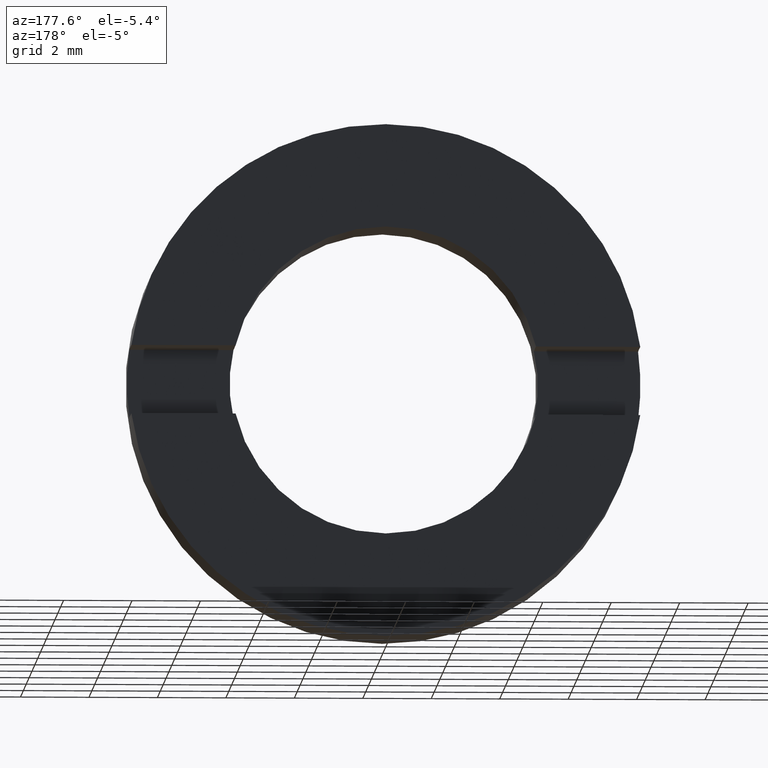
[diagram: clean part render]
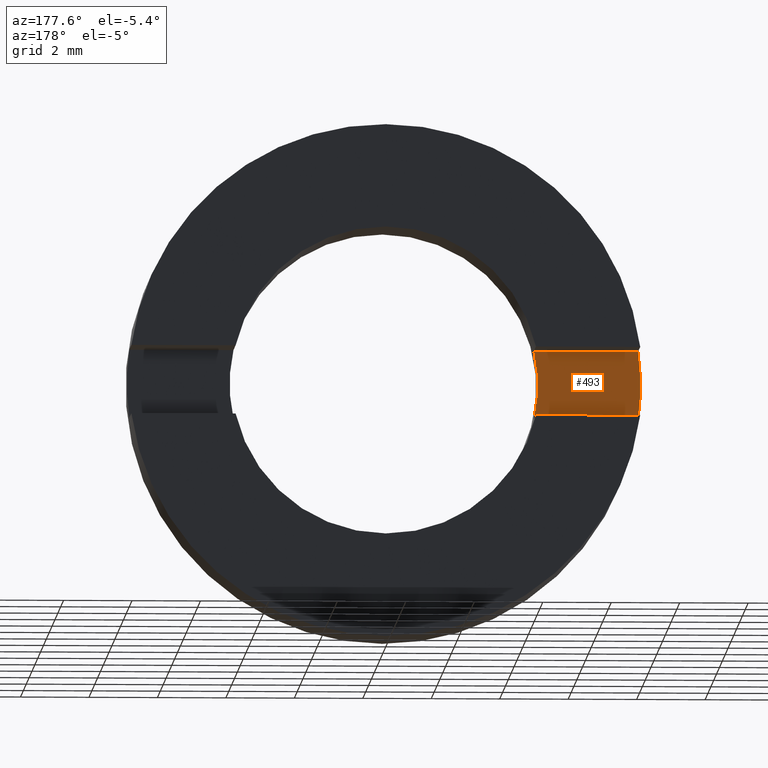
[diagram: same view with one face highlighted and labeled with its STEP entity id]
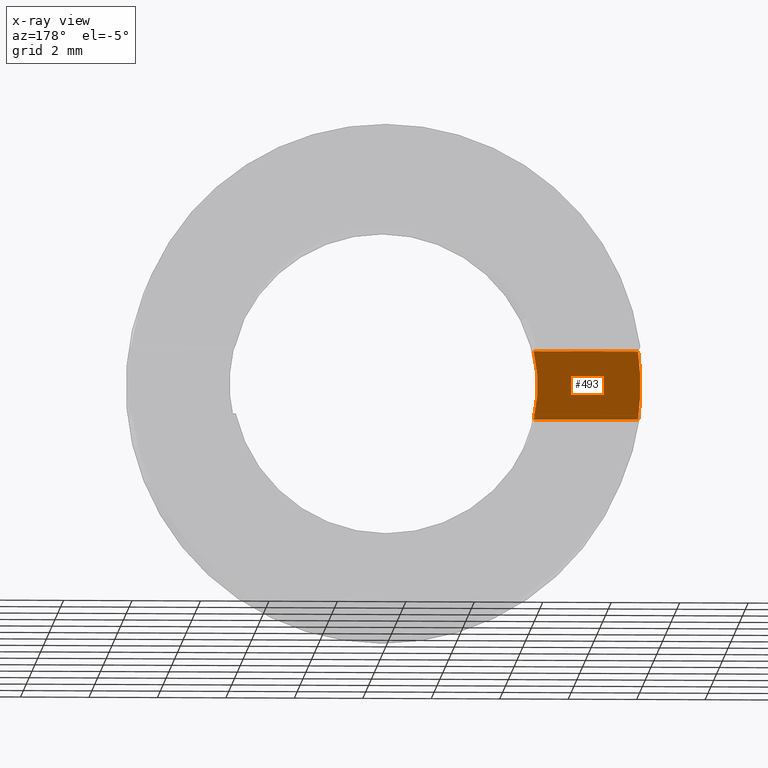
[diagram: x-ray of the same camera — body ghosted, the highlighted face saturated]
A machine part, auxiliary view. The second image highlights one B-rep face of the part: STEP entity #493.
The next image is the same camera in x-ray: the body ghosted, the highlighted face saturated — about 0% of this face is hidden behind the body in this view.
In plain terms, the highlighted planar face has unit normal (0, 1, 0).
Its self-contained STEP definition (entity closure, byte-faithful):
#8 = VERTEX_POINT ( 'NONE', #528 ) ;
#12 = FACE_OUTER_BOUND ( 'NONE', #540, .T. ) ;
#57 = AXIS2_PLACEMENT_3D ( 'NONE', #245, #563, #564 ) ;
#58 = CARTESIAN_POINT ( 'NONE',  ( -26.85254027261461800, -3.464249787179431100, -1.000000000000000000 ) ) ;
#68 = ORIENTED_EDGE ( 'NONE', *, *, #100, .T. ) ;
#79 = EDGE_CURVE ( 'NONE', #457, #8, #589, .T. ) ;
#91 = EDGE_CURVE ( 'NONE', #8, #455, #527, .T. ) ;
#100 = EDGE_CURVE ( 'NONE', #319, #457, #188, .T. ) ;
#133 = DIRECTION ( 'NONE',  ( 0.0000000000000000000, 0.0000000000000000000, 1.000000000000000000 ) ) ;
#174 = CARTESIAN_POINT ( 'NONE',  ( 0.0000000000000000000, -3.464249787179428400, 0.0000000000000000000 ) ) ;
#181 = LINE ( 'NONE', #58, #409 ) ;
#188 = CIRCLE ( 'NONE', #537, 7.500000000000007100 ) ;
#245 = CARTESIAN_POINT ( 'NONE',  ( 0.0000000000000000000, -3.464249787179431100, 0.0000000000000000000 ) ) ;
#247 = ORIENTED_EDGE ( 'NONE', *, *, #332, .T. ) ;
#249 = PLANE ( 'NONE',  #57 ) ;
#305 = CARTESIAN_POINT ( 'NONE',  ( -7.433034373659258300, -3.464249787179428400, 0.9999999999999995600 ) ) ;
#319 = VERTEX_POINT ( 'NONE', #496 ) ;
#332 = EDGE_CURVE ( 'NONE', #455, #319, #181, .T. ) ;
#375 = DIRECTION ( 'NONE',  ( -1.000000000000000000, -0.0000000000000000000, -0.0000000000000000000 ) ) ;
#399 = CARTESIAN_POINT ( 'NONE',  ( -26.85254027261461800, -3.464249787179431100, 1.000000000000000000 ) ) ;
#409 = VECTOR ( 'NONE', #375, 1000.000000000000000 ) ;
#423 = CARTESIAN_POINT ( 'NONE',  ( -4.387482193696067500, -3.464249787179428400, -0.9999999999999995600 ) ) ;
#440 = DIRECTION ( 'NONE',  ( -0.0000000000000000000, -1.000000000000000000, -0.0000000000000000000 ) ) ;
#450 = AXIS2_PLACEMENT_3D ( 'NONE', #174, #440, #133 ) ;
#455 = VERTEX_POINT ( 'NONE', #423 ) ;
#457 = VERTEX_POINT ( 'NONE', #305 ) ;
#487 = DIRECTION ( 'NONE',  ( 1.000000000000000000, 0.0000000000000000000, 0.0000000000000000000 ) ) ;
#488 = ORIENTED_EDGE ( 'NONE', *, *, #79, .T. ) ;
#493 = ADVANCED_FACE ( 'NONE', ( #12 ), #249, .T. ) ;
#496 = CARTESIAN_POINT ( 'NONE',  ( -7.433034373659258300, -3.464249787179428400, -0.9999999999999995600 ) ) ;
#527 = CIRCLE ( 'NONE', #450, 4.500000000000007100 ) ;
#528 = CARTESIAN_POINT ( 'NONE',  ( -4.387482193696067500, -3.464249787179428400, 0.9999999999999995600 ) ) ;
#531 = DIRECTION ( 'NONE',  ( 0.0000000000000000000, 0.0000000000000000000, 1.000000000000000000 ) ) ;
#537 = AXIS2_PLACEMENT_3D ( 'NONE', #541, #578, #531 ) ;
#540 = EDGE_LOOP ( 'NONE', ( #68, #488, #567, #247 ) ) ;
#541 = CARTESIAN_POINT ( 'NONE',  ( 0.0000000000000000000, -3.464249787179428400, 0.0000000000000000000 ) ) ;
#547 = VECTOR ( 'NONE', #487, 1000.000000000000000 ) ;
#563 = DIRECTION ( 'NONE',  ( 0.0000000000000000000, 1.000000000000000000, 0.0000000000000000000 ) ) ;
#564 = DIRECTION ( 'NONE',  ( 0.0000000000000000000, -0.0000000000000000000, 1.000000000000000000 ) ) ;
#567 = ORIENTED_EDGE ( 'NONE', *, *, #91, .T. ) ;
#578 = DIRECTION ( 'NONE',  ( 0.0000000000000000000, 1.000000000000000000, 0.0000000000000000000 ) ) ;
#589 = LINE ( 'NONE', #399, #547 ) ;